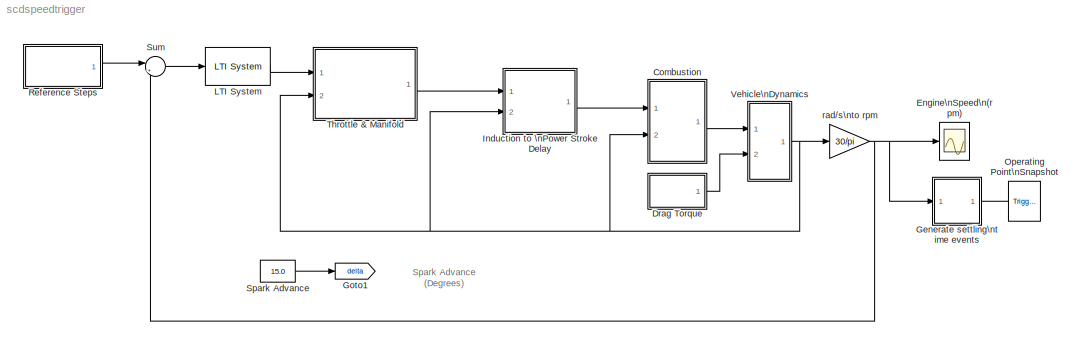
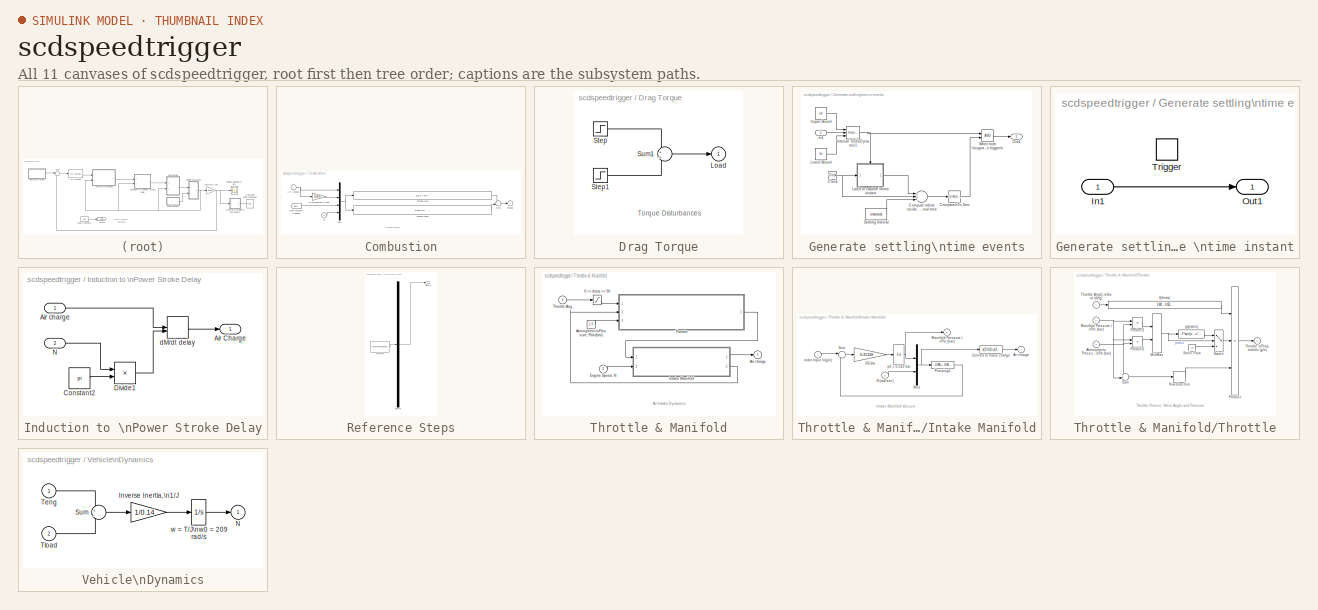
[diagram: thumbnail index - all 11 canvases of the model, root first then tree order]
MODEL scdspeedtrigger
KIND model
BLOCK [SubSystem] Combustion
  MinAlgLoopOccurrences = off
  Ports = [2, 1]
  PropExecContextAcrossSSBoundary = on
  RTWSystemCode = Auto
  TreatAsAtomicUnit = off
BLOCK [Inport] Combustion/Air Charge
  IconDisplay = Port number
  LatchInput = off
BLOCK [From] Combustion/From\nSpark Advance
  CloseFcn = tagdialog Close
  DialogController = Simulink.DDGSource
  GotoTag = delta
BLOCK [Mux] Combustion/Mux
  DisplayOption = bar
  Ports = [4, 1]
BLOCK [Inport] Combustion/N
  IconDisplay = Port number
  LatchInput = off
  Port = 2
BLOCK [Gain] Combustion/Stoichiometric Fuel
  Gain = 1/14.6
BLOCK [Sum] Combustion/Sum
  IconShape = round
  Ports = [2, 1]
BLOCK [Outport] Combustion/Torque
  BusOutputAsStruct = off
  IconDisplay = Port number
  InitialOutput = 0
BLOCK [Fcn] Combustion/Torque Gen
  Expr = -181.3 + 379.36*u[1] + 21.91*u[1]/u[2] - (0.85*u[1]*u[1])/(u[2]*u[2]) + 0.26*u[3] - 0.0028*u[3]*u[3]
BLOCK [Fcn] Combustion/Torque Gen2
  Expr = 0.027*u[4] - 0.000107*u[4]*u[4] + 0.00048*u[4]*u[3] + 2.55*u[3]*u[1] - 0.05*u[3]*u[3]*u[1]
BLOCK [SubSystem] Drag Torque
  MinAlgLoopOccurrences = off
  Ports = [0, 1]
  PropExecContextAcrossSSBoundary = on
  RTWSystemCode = Auto
  TreatAsAtomicUnit = off
BLOCK [Outport] Drag Torque/Load
  BusOutputAsStruct = off
  IconDisplay = Port number
  InitialOutput = 0
BLOCK [Step] Drag Torque/Step
  After = 25
  Before = 25
  SampleTime = 0
  Time = 2
BLOCK [Step] Drag Torque/Step1
  After = 0
  SampleTime = 0
  Time = 8
BLOCK [Sum] Drag Torque/Sum1
  IconShape = round
  Ports = [2, 1]
BLOCK [Scope] Engine\nSpeed\n(rpm)
  DataFormat = Structure
  LimitDataPoints = off
  NumInputPorts = 1
  Ports = [1]
  SaveName = N
  SaveToWorkspace = on
  TickLabels = on
  YMax = 3500
  YMin = 1500
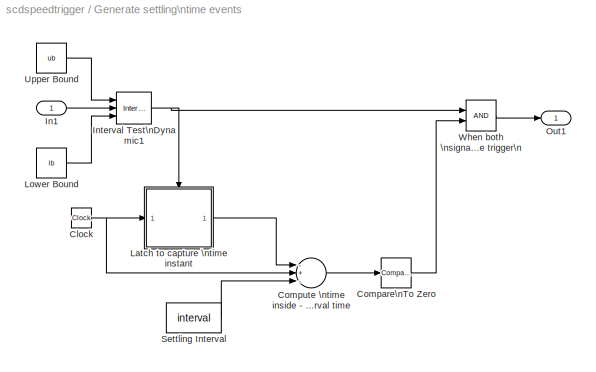
BLOCK [SubSystem] Generate settling\ntime events
  MaskCallbackString = ||
  MaskDescription = Generates trigger events for when a system comes to be within settling intervals specified in the block mask.
  MaskEnableString = on,on,on
  MaskHelp = <p>\nThe settling time trigger generator outputs trigger events for when a system comes to be within settling intervals specified in the block mask.\n</p>\n\n<p>\nMask variables:\n</p>\n<ul>\n<li> Settling Time Upper Bounds - Upper limits for system settling.  This is a vector. </li>\n<li> Settling Time Lower Bounds - Lower limits for system settling.  This is a vector. </li>\n<li> Settling Interv...<+126ch>
  MaskIconFrame = on
  MaskIconOpaque = on
  MaskIconRotate = none
  MaskIconUnits = autoscale
  MaskInitialization = if length(ub) ~= length(lb)\n	error('The upper and lower bound settling time values must be the same.')\nend
  MaskPromptString = Settling Time Upper Bounds|Settling Time Lower Bound|Settling Interval (sec.)
  MaskStyleString = edit,edit,edit
  MaskTabNameString = ,,
  MaskToolTipString = on,on,on
  MaskTunableValueString = on,on,on
  MaskType = Settling Time Trigger Generator
  MaskValueString = [2505;3005;3505]|[2495;2995;3495]|5
  MaskVarAliasString = ,,
  MaskVariables = ub=@1;lb=@2;interval=@3;
  MaskVisibilityString = on,on,on
  MinAlgLoopOccurrences = off
  Ports = [1, 1]
  PropExecContextAcrossSSBoundary = on
  RTWSystemCode = Auto
  TreatAsAtomicUnit = off
BLOCK [Clock] Generate settling\ntime events/Clock
  Decimation = 10
BLOCK [Reference] Generate settling\ntime events/Compare\nTo Zero  REF=simulink/Logic and Bit\nOperations/Compare\nTo Zero
  LogicOutDataTypeMode = uint8
  Ports = [1, 1]
  ShowPortLabels = on
  SourceBlock = simulink/Logic and Bit\nOperations/Compare\nTo Zero
  SourceType = Compare To Zero
  relop = >=
BLOCK [Sum] Generate settling\ntime events/Compute \ntime inside - interval time  
  InputSameDT = off
  Inputs = -+-
  OutDataTypeMode = double
  OutScaling = 2^-10
  Ports = [3, 1]
  SaturateOnIntegerOverflow = off
BLOCK [Inport] Generate settling\ntime events/In1
  IconDisplay = Port number
  LatchInput = off
BLOCK [Reference] Generate settling\ntime events/Interval Test\nDynamic1  REF=simulink/Logic and Bit\nOperations/Interval Test\nDynamic
  IntervalClosedLeft = on
  IntervalClosedRight = on
  LogicOutDataTypeMode = uint8
  Ports = [3, 1]
  ShowPortLabels = on
  SourceBlock = simulink/Logic and Bit\nOperations/Interval Test\nDynamic
  SourceType = Interval Test Dynamic
BLOCK [SubSystem] Generate settling\ntime events/Latch to capture \ntime instant
  MinAlgLoopOccurrences = off
  Ports = [1, 1, 0, 1]
  PropExecContextAcrossSSBoundary = on
  RTWSystemCode = Auto
  TreatAsAtomicUnit = off
BLOCK [Inport] Generate settling\ntime events/Latch to capture \ntime instant/In1
  IconDisplay = Port number
  LatchInput = off
BLOCK [Outport] Generate settling\ntime events/Latch to capture \ntime instant/Out1
  BusOutputAsStruct = off
  IconDisplay = Port number
  InitialOutput = 0
BLOCK [TriggerPort] Generate settling\ntime events/Latch to capture \ntime instant/Trigger
  OutputDataType = double
  Ports = []
  StatesWhenEnabling = held
  ZeroCross = off
BLOCK [Constant] Generate settling\ntime events/Lower Bound
  Value = lb
BLOCK [Outport] Generate settling\ntime events/Out1
  BusOutputAsStruct = off
  IconDisplay = Port number
BLOCK [Constant] Generate settling\ntime events/Settling Interval
  Value = interval
BLOCK [Constant] Generate settling\ntime events/Upper Bound
  Value = ub
BLOCK [Logic] Generate settling\ntime events/When both \nsignals are \ntrue throw \nthe trigger\n
  AllPortsSameDT = off
  LogicDataType = double
  OutDataTypeMode = Boolean
  Ports = [2, 1]
BLOCK [Goto] Goto1
  DialogController = Simulink.DDGSource
  GotoTag = delta
  TagVisibility = global
BLOCK [SubSystem] Induction to \nPower Stroke Delay
  MinAlgLoopOccurrences = off
  Ports = [2, 1]
  PropExecContextAcrossSSBoundary = on
  RTWSystemCode = Auto
  TreatAsAtomicUnit = off
BLOCK [Outport] Induction to \nPower Stroke Delay/Air Charge
  BusOutputAsStruct = off
  IconDisplay = Port number
BLOCK [Inport] Induction to \nPower Stroke Delay/Air charge
  IconDisplay = Port number
  LatchInput = off
BLOCK [Constant] Induction to \nPower Stroke Delay/Constant2
  Value = pi
BLOCK [Product] Induction to \nPower Stroke Delay/Divide1
  InputSameDT = off
  Inputs = /*
  OutDataTypeMode = Inherit via internal rule
  OutScaling = 2^-10
  Ports = [2, 1]
  RndMeth = Floor
  SaturateOnIntegerOverflow = off
BLOCK [Inport] Induction to \nPower Stroke Delay/N
  IconDisplay = Port number
  LatchInput = off
  Port = 2
BLOCK [VariableTransportDelay] Induction to \nPower Stroke Delay/dM//dt delay
  InitialInput = 0.152
  MaximumDelay = 10
  PadeOrder = 2
  TransDelayFeedthrough = on
BLOCK [Reference] LTI System  REF=cstblocks/LTI System
  IC = []
  Ports = [1, 1]
  ShowPortLabels = on
  SourceBlock = cstblocks/LTI System
  SourceType = LTI Block
  sys = C
BLOCK [Reference] Operating Point\nSnapshot  REF=slctrlblks/Trigger-Based \nOperating Point\nSnapshot
  Ports = [0, 0, 0, 1]
  ShowPortLabels = on
  SourceBlock = slctrlblks/Trigger-Based \nOperating Point\nSnapshot
  SourceType = Triggered Operating Condition/Linearization Snapshot
  TriggerType = rising
BLOCK [SubSystem] Reference Steps
  ClipboardFcn = sigbuilder_block('clipboard');
  CloseFcn = sigbuilder_block('close');
  CopyFcn = sigbuilder_block('copy');
  DeleteFcn = sigbuilder_block('delete');
  LoadFcn = sigbuilder_block('load');
  MaskDescription = Sigbuilder GUI
  MaskDisplay = plot(0,0,100,100,[10,10,40,40,10],[80,20,20,80,80],[40,10],[50,50], [40,27,10],[65,72,56],[40,25,25,10],[28,28,43,43]);
  MaskIconFrame = on
  MaskIconOpaque = off
  MaskIconRotate = port
  MaskIconUnits = autoscale
  MaskInitialization = if ~strcmp(get_param(bdroot(gcbh),'SimulationStatus'),'stopped') tuvar = sigbuilder_block('maskInit'); end
  MaskType = Sigbuilder block
  MinAlgLoopOccurrences = off
  ModelCloseFcn = sigbuilder_block('modelClose');
  NameChangeFcn = sigbuilder_block('namechange');
  OpenFcn = sigbuilder_block('open',[50 50 520 400 ]);
  Ports = [0, 1]
  PreSaveFcn = sigbuilder_block('preSave');
  PropExecContextAcrossSSBoundary = on
  RTWSystemCode = Auto
  StartFcn = sigbuilder_block('start');
  StopFcn = sigbuilder_block('stop');
  Tag = STV Subsys
  TreatAsAtomicUnit = off
BLOCK [Demux] Reference Steps/Demux
  Outputs = 1
  Ports = [1, 1]
  Tag = STV Demux
BLOCK [FromWorkspace] Reference Steps/FromWs
  SampleTime = 0
  SigBuilderData = DataTag1
  Tag = STV FromWs
  VariableName = tuvar
  VnvData = DataTag2
BLOCK [Outport] Reference Steps/Signal 1
  BusOutputAsStruct = off
  IconDisplay = Port number
  Tag = STV Outport
BLOCK [Constant] Spark Advance
  Value = 15.0
BLOCK [Sum] Sum
  IconShape = round
  InputSameDT = off
  Inputs = |+-
  OutDataTypeMode = Inherit via internal rule
  Ports = [2, 1]
  SaturateOnIntegerOverflow = off
BLOCK [SubSystem] Throttle & Manifold
  MinAlgLoopOccurrences = off
  Ports = [2, 1]
  PropExecContextAcrossSSBoundary = on
  RTWSystemCode = Auto
  TreatAsAtomicUnit = off
BLOCK [Saturate] Throttle & Manifold/0 <= theta <= 90
  LowerLimit = 0
  UpperLimit = 90
BLOCK [Outport] Throttle & Manifold/Air charge
  BusOutputAsStruct = off
  IconDisplay = Port number
  InitialOutput = 0
BLOCK [Constant] Throttle & Manifold/Atmospheric\nPressure, Pa\n(bar)
  Value = 1.0
BLOCK [Inport] Throttle & Manifold/Engine Speed, N
  IconDisplay = Port number
  LatchInput = off
  Port = 2
BLOCK [SubSystem] Throttle & Manifold/Intake Manifold
  MinAlgLoopOccurrences = off
  Ports = [2, 2]
  PropExecContextAcrossSSBoundary = on
  RTWSystemCode = Auto
  TreatAsAtomicUnit = off
BLOCK [Outport] Throttle & Manifold/Intake Manifold/Air charge
  BusOutputAsStruct = off
  IconDisplay = Port number
  InitialOutput = 0
BLOCK [Fcn] Throttle & Manifold/Intake Manifold/Convert to mass charge
  Expr = p(1)*u(2)+p(2)*u(1)+p(3)*u(1)*u(1)+p(4)*u(1)*u(2)+p(5)
BLOCK [Outport] Throttle & Manifold/Intake Manifold/Manifold Pressure,\nPm (bar)
  BusOutputAsStruct = off
  IconDisplay = Port number
  InitialOutput = 0
  Port = 2
BLOCK [Mux] Throttle & Manifold/Intake Manifold/Mux
  DisplayOption = bar
  Inputs = 2
  Ports = [2, 1]
BLOCK [Inport] Throttle & Manifold/Intake Manifold/N (rad//sec)
  IconDisplay = Port number
  LatchInput = off
  Port = 2
BLOCK [Fcn] Throttle & Manifold/Intake Manifold/Pumping1
  Expr = -0.366 + 0.08979*u[1]*u[2] - 0.0337*u[2]*u[1]*u[1] + 0.0001*u[1]*u[2]*u[2]
BLOCK [Gain] Throttle & Manifold/Intake Manifold/RT//Vm
  Gain = 0.41328
BLOCK [Sum] Throttle & Manifold/Intake Manifold/Sum
  IconShape = round
  Inputs = |+-
  Ports = [2, 1]
BLOCK [Inport] Throttle & Manifold/Intake Manifold/mdot Input \n(g//s)
  IconDisplay = Port number
  LatchInput = off
BLOCK [Integrator] Throttle & Manifold/Intake Manifold/p0 = 0.543 bar
  InitialCondition = .543
  Ports = [1, 1]
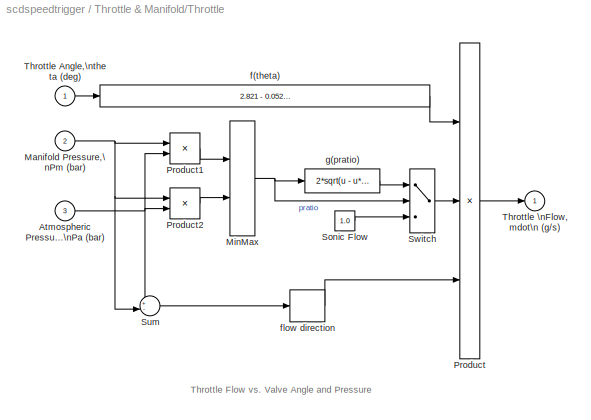
BLOCK [SubSystem] Throttle & Manifold/Throttle
  MinAlgLoopOccurrences = off
  Ports = [3, 1]
  PropExecContextAcrossSSBoundary = on
  RTWSystemCode = Auto
  TreatAsAtomicUnit = off
BLOCK [Inport] Throttle & Manifold/Throttle Ang.
  IconDisplay = Port number
  LatchInput = off
BLOCK [Inport] Throttle & Manifold/Throttle/Atmospheric Pressure,\nPa (bar) 
  IconDisplay = Port number
  LatchInput = off
  Port = 3
BLOCK [Inport] Throttle & Manifold/Throttle/Manifold Pressure,\nPm (bar)
  IconDisplay = Port number
  LatchInput = off
  Port = 2
BLOCK [MinMax] Throttle & Manifold/Throttle/MinMax
  Function = min
  Inputs = 2
  Ports = [2, 1]
BLOCK [Product] Throttle & Manifold/Throttle/Product
  Inputs = 3
  Ports = [3, 1]
BLOCK [Product] Throttle & Manifold/Throttle/Product1
  Inputs = */
  Ports = [2, 1]
BLOCK [Product] Throttle & Manifold/Throttle/Product2
  Inputs = /*
  Ports = [2, 1]
BLOCK [Constant] Throttle & Manifold/Throttle/Sonic Flow 
  Value = 1.0
BLOCK [Sum] Throttle & Manifold/Throttle/Sum
  IconShape = round
  Inputs = +-|
  Ports = [2, 1]
BLOCK [Switch] Throttle & Manifold/Throttle/Switch
  Threshold = 0.5
BLOCK [Inport] Throttle & Manifold/Throttle/Throttle Angle,\ntheta (deg)
  IconDisplay = Port number
  LatchInput = off
BLOCK [Outport] Throttle & Manifold/Throttle/Throttle \nFlow, mdot\n (g//s)
  BusOutputAsStruct = off
  IconDisplay = Port number
  InitialOutput = 0
BLOCK [Fcn] Throttle & Manifold/Throttle/f(theta)
  Expr = 2.821 - 0.05231*u + 0.10299*u*u - 0.00063*u*u*u
BLOCK [Signum] Throttle & Manifold/Throttle/flow direction
BLOCK [Fcn] Throttle & Manifold/Throttle/g(pratio)
  Expr = 2*sqrt(u - u*u)
BLOCK [SubSystem] Vehicle\nDynamics
  MinAlgLoopOccurrences = off
  Ports = [2, 1]
  PropExecContextAcrossSSBoundary = on
  RTWSystemCode = Auto
  TreatAsAtomicUnit = off
BLOCK [Gain] Vehicle\nDynamics/Inverse Inertia,\n1//J
  Gain = 1/0.14
BLOCK [Outport] Vehicle\nDynamics/N
  BusOutputAsStruct = off
  IconDisplay = Port number
  InitialOutput = 0
BLOCK [Sum] Vehicle\nDynamics/Sum
  IconShape = round
  Inputs = +-
  Ports = [2, 1]
BLOCK [Inport] Vehicle\nDynamics/Teng
  IconDisplay = Port number
  LatchInput = off
BLOCK [Inport] Vehicle\nDynamics/Tload
  IconDisplay = Port number
  LatchInput = off
  Port = 2
BLOCK [Integrator] Vehicle\nDynamics/w = T//J\nw0 = 209 rad//s
  InitialCondition = 209.48
  Ports = [1, 1]
BLOCK [Gain] rad//s\nto rpm
  Gain = 30/pi
ANNOTATION (root): Spark Advance\n(Degrees)
ANNOTATION Combustion: Engine Torque
ANNOTATION Drag Torque: Torque Disturbances
ANNOTATION Throttle & Manifold: Air Intake Dynamics
ANNOTATION Throttle & Manifold/Intake Manifold: Intake Manifold Vacuum
ANNOTATION Throttle & Manifold/Throttle: Throttle Flow vs. Valve Angle and Pressure
NET Combustion/Air Charge:1 -> Combustion/Mux:1, Combustion/Stoichiometric Fuel:1
LINE Combustion/From\nSpark Advance:1 -> Combustion/Mux:3
NET Combustion/Mux:1 -> Combustion/Torque Gen2:1, Combustion/Torque Gen:1
LINE Combustion/N:1 -> Combustion/Mux:4
LINE Combustion/Stoichiometric Fuel:1 -> Combustion/Mux:2
LINE Combustion/Sum:1 -> Combustion/Torque:1
LINE Combustion/Torque Gen2:1 -> Combustion/Sum:2
LINE Combustion/Torque Gen:1 -> Combustion/Sum:1
LINE Combustion:1 -> Vehicle\nDynamics:1
LINE Drag Torque/Step1:1 -> Drag Torque/Sum1:2
LINE Drag Torque/Step:1 -> Drag Torque/Sum1:1
LINE Drag Torque/Sum1:1 -> Drag Torque/Load:1
LINE Drag Torque:1 -> Vehicle\nDynamics:2
NET Generate settling\ntime events/Clock:1 -> Generate settling\ntime events/Compute \ntime inside - interval time  :2, Generate settling\ntime events/Latch to capture \ntime instant:1
LINE Generate settling\ntime events/Compare\nTo Zero:1 -> Generate settling\ntime events/When both \nsignals are \ntrue throw \nthe trigger\n:2
LINE Generate settling\ntime events/Compute \ntime inside - interval time  :1 -> Generate settling\ntime events/Compare\nTo Zero:1
LINE Generate settling\ntime events/In1:1 -> Generate settling\ntime events/Interval Test\nDynamic1:2
NET Generate settling\ntime events/Interval Test\nDynamic1:1 -> Generate settling\ntime events/Latch to capture \ntime instant:trigger, Generate settling\ntime events/When both \nsignals are \ntrue throw \nthe trigger\n:1
LINE Generate settling\ntime events/Latch to capture \ntime instant/In1:1 -> Generate settling\ntime events/Latch to capture \ntime instant/Out1:1
LINE Generate settling\ntime events/Latch to capture \ntime instant:1 -> Generate settling\ntime events/Compute \ntime inside - interval time  :1
LINE Generate settling\ntime events/Lower Bound:1 -> Generate settling\ntime events/Interval Test\nDynamic1:3
LINE Generate settling\ntime events/Settling Interval:1 -> Generate settling\ntime events/Compute \ntime inside - interval time  :3
LINE Generate settling\ntime events/Upper Bound:1 -> Generate settling\ntime events/Interval Test\nDynamic1:1
LINE Generate settling\ntime events/When both \nsignals are \ntrue throw \nthe trigger\n:1 -> Generate settling\ntime events/Out1:1
LINE Generate settling\ntime events:1 -> Operating Point\nSnapshot:trigger
LINE Induction to \nPower Stroke Delay/Air charge:1 -> Induction to \nPower Stroke Delay/dM//dt delay:1
LINE Induction to \nPower Stroke Delay/Constant2:1 -> Induction to \nPower Stroke Delay/Divide1:2
LINE Induction to \nPower Stroke Delay/Divide1:1 -> Induction to \nPower Stroke Delay/dM//dt delay:2
LINE Induction to \nPower Stroke Delay/N:1 -> Induction to \nPower Stroke Delay/Divide1:1
LINE Induction to \nPower Stroke Delay/dM//dt delay:1 -> Induction to \nPower Stroke Delay/Air Charge:1
LINE Induction to \nPower Stroke Delay:1 -> Combustion:1
LINE LTI System:1 -> Throttle & Manifold:1
LINE Reference Steps/Demux:1 -> Reference Steps/Signal 1:1
LINE Reference Steps/FromWs:1 -> Reference Steps/Demux:1
LINE Reference Steps:1 -> Sum:1
LINE Spark Advance:1 -> Goto1:1
LINE Sum:1 -> LTI System:1
LINE Throttle & Manifold/0 <= theta <= 90:1 -> Throttle & Manifold/Throttle:1
LINE Throttle & Manifold/Atmospheric\nPressure, Pa\n(bar):1 -> Throttle & Manifold/Throttle:3
LINE Throttle & Manifold/Engine Speed, N:1 -> Throttle & Manifold/Intake Manifold:2
LINE Throttle & Manifold/Intake Manifold/Convert to mass charge:1 -> Throttle & Manifold/Intake Manifold/Air charge:1
NET Throttle & Manifold/Intake Manifold/Mux:1 -> Throttle & Manifold/Intake Manifold/Convert to mass charge:1, Throttle & Manifold/Intake Manifold/Pumping1:1
LINE Throttle & Manifold/Intake Manifold/N (rad//sec):1 -> Throttle & Manifold/Intake Manifold/Mux:2
LINE Throttle & Manifold/Intake Manifold/Pumping1:1 -> Throttle & Manifold/Intake Manifold/Sum:2
LINE Throttle & Manifold/Intake Manifold/RT//Vm:1 -> Throttle & Manifold/Intake Manifold/p0 = 0.543 bar:1
LINE Throttle & Manifold/Intake Manifold/Sum:1 -> Throttle & Manifold/Intake Manifold/RT//Vm:1
LINE Throttle & Manifold/Intake Manifold/mdot Input \n(g//s):1 -> Throttle & Manifold/Intake Manifold/Sum:1
NET Throttle & Manifold/Intake Manifold/p0 = 0.543 bar:1 -> Throttle & Manifold/Intake Manifold/Manifold Pressure,\nPm (bar):1, Throttle & Manifold/Intake Manifold/Mux:1
LINE Throttle & Manifold/Intake Manifold:1 -> Throttle & Manifold/Air charge:1
LINE Throttle & Manifold/Intake Manifold:2 -> Throttle & Manifold/Throttle:2
LINE Throttle & Manifold/Throttle Ang.:1 -> Throttle & Manifold/0 <= theta <= 90:1
NET Throttle & Manifold/Throttle/Atmospheric Pressure,\nPa (bar) :1 -> Throttle & Manifold/Throttle/Product1:2, Throttle & Manifold/Throttle/Product2:2, Throttle & Manifold/Throttle/Sum:1
NET Throttle & Manifold/Throttle/Manifold Pressure,\nPm (bar):1 -> Throttle & Manifold/Throttle/Product1:1, Throttle & Manifold/Throttle/Product2:1, Throttle & Manifold/Throttle/Sum:2
NET Throttle & Manifold/Throttle/MinMax:1 -> Throttle & Manifold/Throttle/Switch:2, Throttle & Manifold/Throttle/g(pratio):1
LINE Throttle & Manifold/Throttle/Product1:1 -> Throttle & Manifold/Throttle/MinMax:1
LINE Throttle & Manifold/Throttle/Product2:1 -> Throttle & Manifold/Throttle/MinMax:2
LINE Throttle & Manifold/Throttle/Product:1 -> Throttle & Manifold/Throttle/Throttle \nFlow, mdot\n (g//s):1
LINE Throttle & Manifold/Throttle/Sonic Flow :1 -> Throttle & Manifold/Throttle/Switch:3
LINE Throttle & Manifold/Throttle/Sum:1 -> Throttle & Manifold/Throttle/flow direction:1
LINE Throttle & Manifold/Throttle/Switch:1 -> Throttle & Manifold/Throttle/Product:2
LINE Throttle & Manifold/Throttle/Throttle Angle,\ntheta (deg):1 -> Throttle & Manifold/Throttle/f(theta):1
LINE Throttle & Manifold/Throttle/f(theta):1 -> Throttle & Manifold/Throttle/Product:1
LINE Throttle & Manifold/Throttle/flow direction:1 -> Throttle & Manifold/Throttle/Product:3
LINE Throttle & Manifold/Throttle/g(pratio):1 -> Throttle & Manifold/Throttle/Switch:1
LINE Throttle & Manifold/Throttle:1 -> Throttle & Manifold/Intake Manifold:1
LINE Throttle & Manifold:1 -> Induction to \nPower Stroke Delay:1
LINE Vehicle\nDynamics/Inverse Inertia,\n1//J:1 -> Vehicle\nDynamics/w = T//J\nw0 = 209 rad//s:1
LINE Vehicle\nDynamics/Sum:1 -> Vehicle\nDynamics/Inverse Inertia,\n1//J:1
LINE Vehicle\nDynamics/Teng:1 -> Vehicle\nDynamics/Sum:1
LINE Vehicle\nDynamics/Tload:1 -> Vehicle\nDynamics/Sum:2
LINE Vehicle\nDynamics/w = T//J\nw0 = 209 rad//s:1 -> Vehicle\nDynamics/N:1
NET Vehicle\nDynamics:1 -> Combustion:2, Induction to \nPower Stroke Delay:2, Throttle & Manifold:2, rad//s\nto rpm:1
NET rad//s\nto rpm:1 -> Engine\nSpeed\n(rpm):1, Generate settling\ntime events:1, Sum:2
note: NET lines group one-source signal fan-out (src -> all destinations, sorted); 1:1 wires keep LINE
